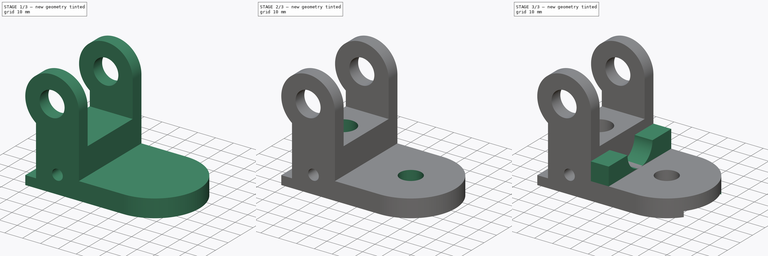
[diagram: build sequence overview — one tinted view per stage of 3, left to right]
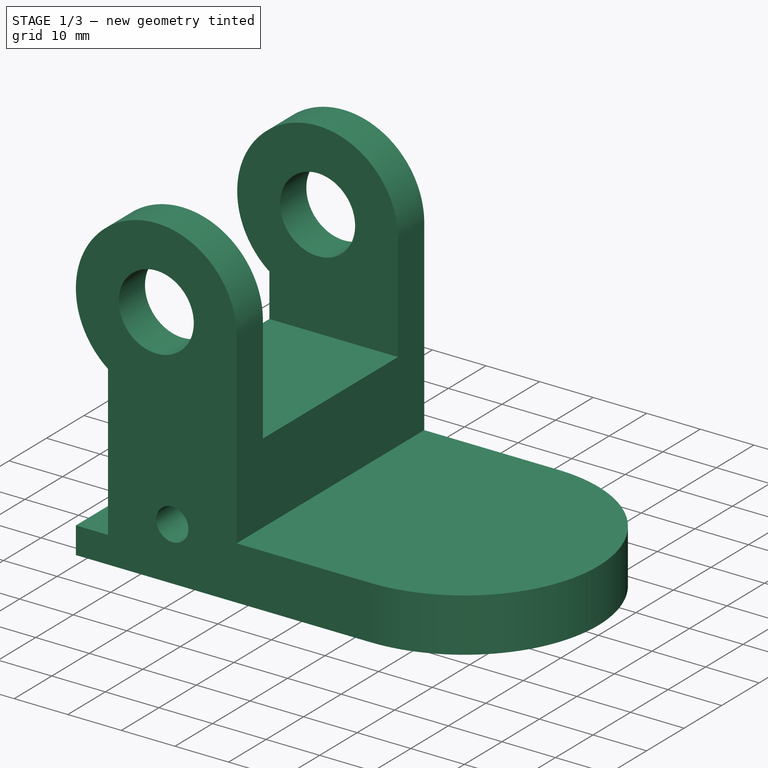
[diagram: stage 1 of 3 — iso view after this stage's code; geometry added in this stage tinted green]
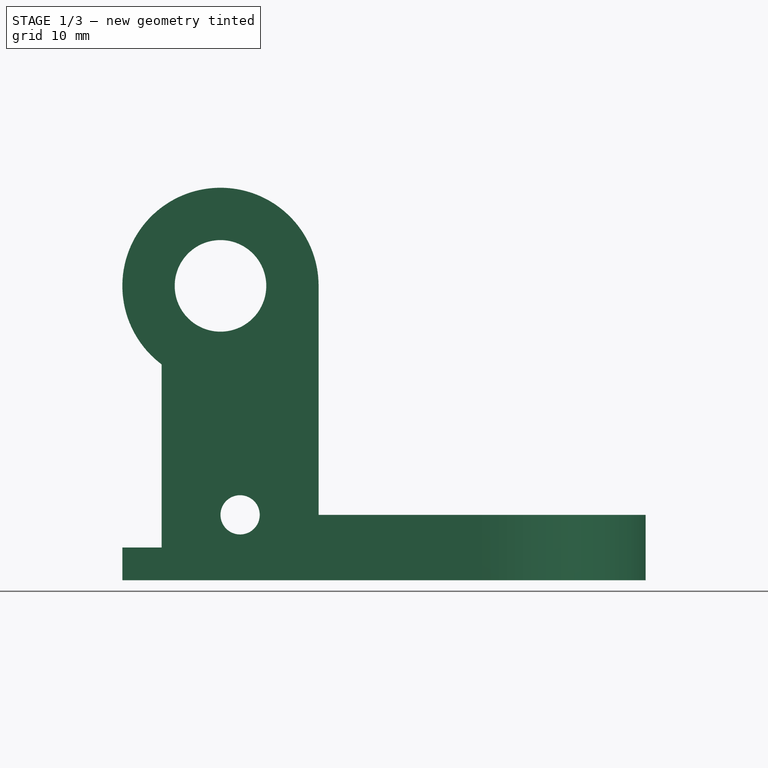
[diagram: stage 1 of 3 — front view after this stage's code; geometry added in this stage tinted green]
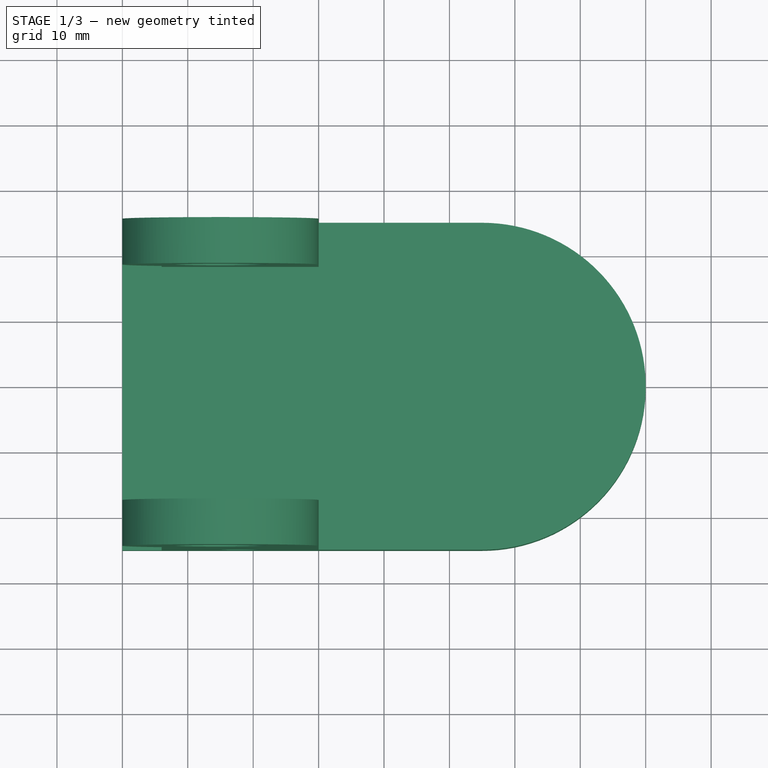
[diagram: stage 1 of 3 — top view after this stage's code; geometry added in this stage tinted green]
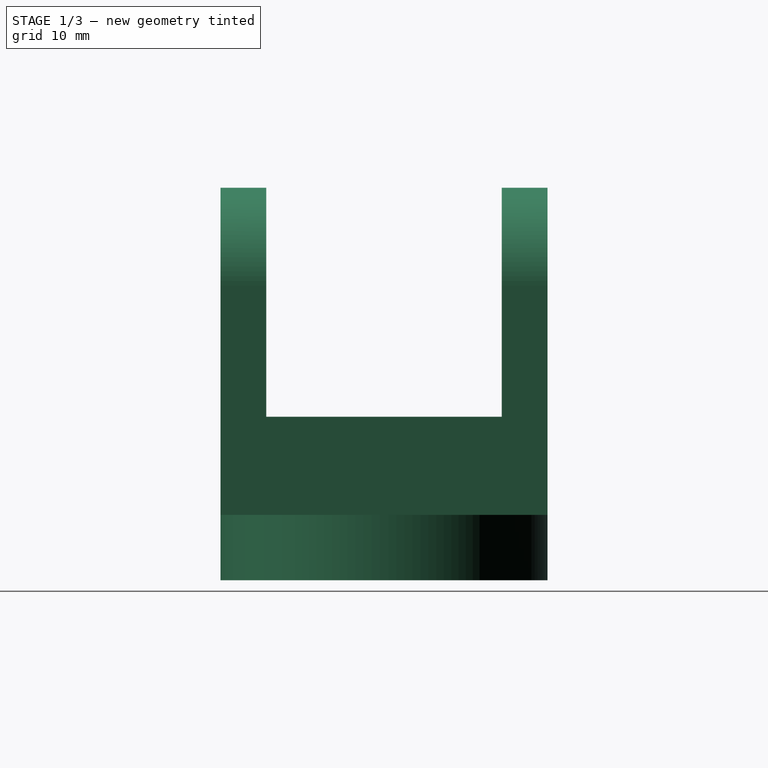
[diagram: stage 1 of 3 — right view after this stage's code; geometry added in this stage tinted green]
FCSTD DOCUMENT  (FreeCAD 0.15R4671 (Git))
Label: breaking
License: All rights reserved
LicenseURL: http://en.wikipedia.org/wiki/All_rights_reserved
objects: Sketcher::SketchObject×8, PartDesign::Pocket×5, PartDesign::Pad×3
note: 24 computed .brp shape members not serialized (recipe doc carries the construction recipe); baked Part::Feature solids carry a one-line shape summary decoded from their .brp

FEATURE [Sketcher::SketchObject] Sketch
  Placement = pos=(0,0,0) rot=(-1,0,0;4.71239rad)
  sketch-geometry (10):
    g0: LineSegment StartX=0 StartY=0 StartZ=0 EndX=0 EndY=5 EndZ=0
    g1: LineSegment StartX=0 StartY=5 StartZ=0 EndX=6 EndY=5 EndZ=0
    g2: LineSegment StartX=6 StartY=5 StartZ=0 EndX=6 EndY=33 EndZ=0
    g3: LineSegment StartX=30 StartY=45.0126 StartZ=0 EndX=30 EndY=10 EndZ=0
    g4: LineSegment StartX=30 StartY=10 StartZ=0 EndX=55 EndY=10 EndZ=0
    g5: LineSegment StartX=55 StartY=10 StartZ=0 EndX=55 EndY=0 EndZ=0
    g6: LineSegment StartX=0 StartY=0 StartZ=0 EndX=55 EndY=0 EndZ=0
    g7: ArcOfCircle CenterX=15 CenterY=45 CenterZ=0 NormalX=0 NormalY=0 NormalZ=1 Radius=15 StartAngle=0.000843274 EndAngle=4.06889
    g8: Circle CenterX=15 CenterY=45 CenterZ=0 NormalX=0 NormalY=0 NormalZ=1 Radius=7
    g9: Circle CenterX=18 CenterY=10 CenterZ=0 NormalX=0 NormalY=0 NormalZ=1 Radius=3
  constraints (23):
    c: Coincident(g-1,g0)
    c: Coincident(g0,g1)
    c: Coincident(g1,g2)
    c: Coincident(g3,g4)
    c: Coincident(g4,g5)
    c: Coincident(g-1,g6)
    c: Coincident(g6,g5)
    c: Coincident(g7,g2)
    c: Coincident(g7,g3)
    c: Coincident(g8,g7)
    c: Radius(g7) = 15
    c: Vertical(g3)
    c: Vertical(g2)
    c: DistanceY(g0) = 5
    c: DistanceY(g5) = -10
    c: DistanceX(g6) = 55
    c: DistanceX(g1,g3) = 24
    c: DistanceX(g4) = 25
    c: Vertical(g5)
    c: DistanceX(g9,g3) = 12
    c: DistanceY(g-1,g9) = 10
    c: Radius(g9) = 3
    c: DistanceY(g-1,g7) = 45
FEATURE [PartDesign::Pad] Pad
  Length = 50
  Length2 = 100
  Midplane = true
  Placement = pos=(0,0,0) rot=(-1,0,0;4.71239rad)
  Sketch = -> Sketch
  Type = 0
FEATURE [Sketcher::SketchObject] Sketch001
  Placement = pos=(0,0,10) rot=(0,0,1;3.14159rad)
  Support = -> Pad [Face2]
  sketch-geometry (1):
    g0: Circle CenterX=-55 CenterY=0 CenterZ=0 NormalX=0 NormalY=0 NormalZ=1 Radius=25
  constraints (3):
    c: PointOnObject(g0,g-1)
    c: DistanceX(g-1,g0) = -55
    c: Radius(g0) = 25
FEATURE [PartDesign::Pad] Pad001
  Length = 50
  Length2 = 100
  Placement = pos=(0,0,0) rot=(-1,0,0;4.71239rad)
  Reversed = true
  Sketch = -> Sketch001
  Type = 2
FEATURE [Sketcher::SketchObject] Sketch002
  Placement = pos=(30,0,0) rot=(0.707107,0,0.707107;3.14159rad)
  Support = -> Pad001 [Face2]
  sketch-geometry (4):
    g0: LineSegment StartX=25 StartY=18 StartZ=0 EndX=60 EndY=18 EndZ=0
    g1: LineSegment StartX=60 StartY=18 StartZ=0 EndX=60 EndY=-18 EndZ=0
    g2: LineSegment StartX=60 StartY=-18 StartZ=0 EndX=25 EndY=-18 EndZ=0
    g3: LineSegment StartX=25 StartY=-18 StartZ=0 EndX=25 EndY=18 EndZ=0
  constraints (12):
    c: Coincident(g0,g1)
    c: Coincident(g1,g2)
    c: Coincident(g2,g3)
    c: Coincident(g3,g0)
    c: Horizontal(g0)
    c: Horizontal(g2)
    c: Vertical(g1)
    c: Vertical(g3)
    c: Symmetric(g0,g1,g-1)
    c: DistanceX(g-1,g0) = 25
    c: DistanceX(g1,g2) = -35
    c: DistanceY(g0,g1) = -36
FEATURE [PartDesign::Pocket] Pocket
  Length = 5
  Placement = pos=(0,0,0) rot=(-1,0,0;4.71239rad)
  Sketch = -> Sketch002
  Type = 1
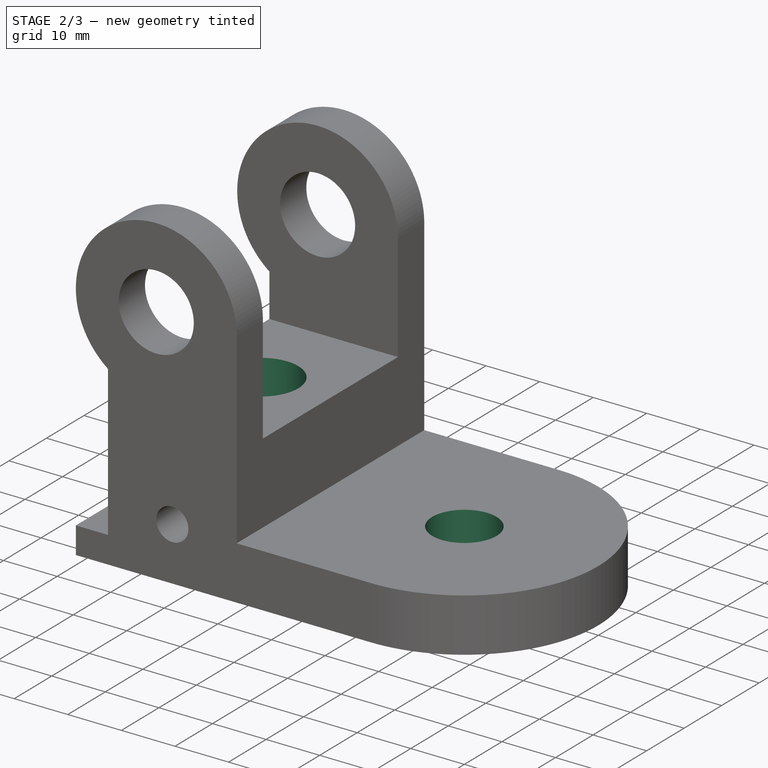
[diagram: stage 2 of 3 — iso view after this stage's code; geometry added in this stage tinted green]
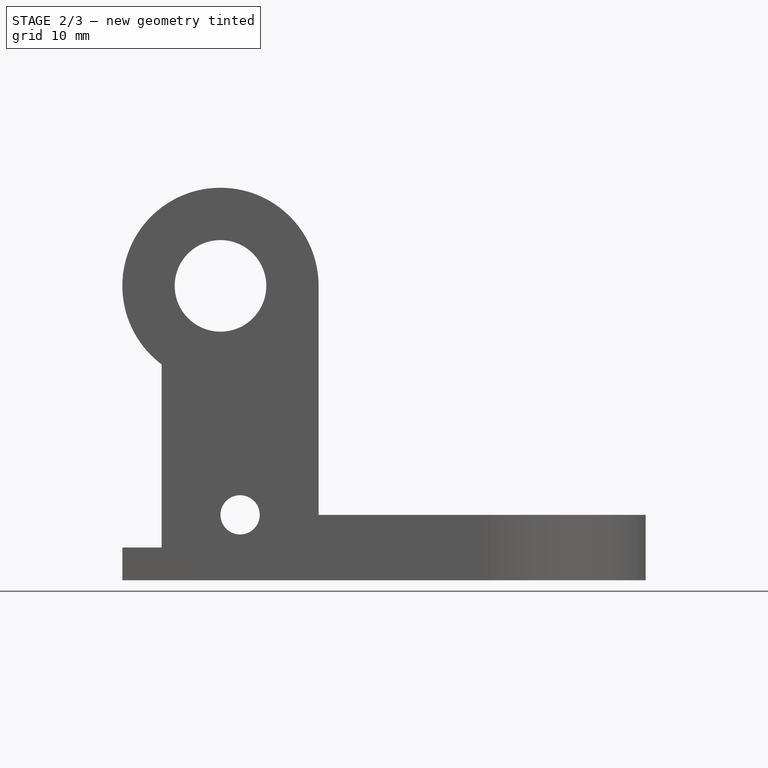
[diagram: stage 2 of 3 — front view after this stage's code; geometry added in this stage tinted green]
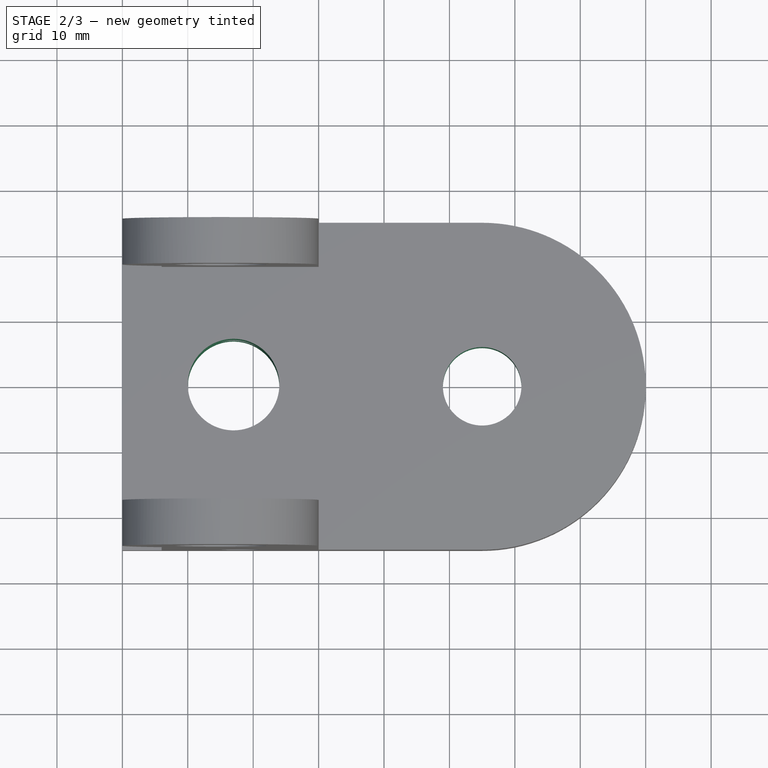
[diagram: stage 2 of 3 — top view after this stage's code; geometry added in this stage tinted green]
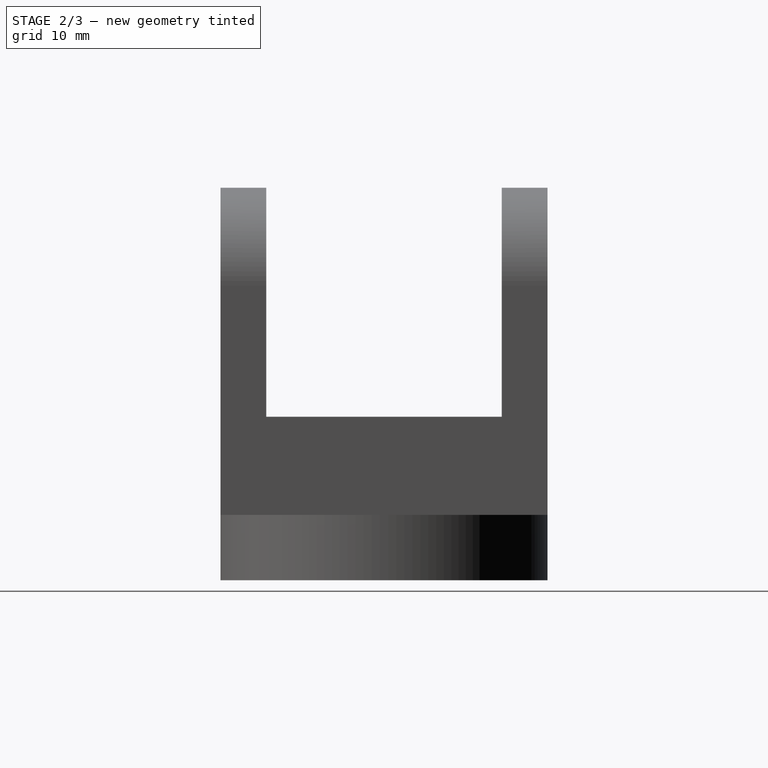
[diagram: stage 2 of 3 — right view after this stage's code; geometry added in this stage tinted green]
FEATURE [Sketcher::SketchObject] Sketch003
  Placement = pos=(0,0,25) rot=(0,0,1;3.14159rad)
  Support = -> Pocket [Face13]
  sketch-geometry (1):
    g0: Circle CenterX=-17 CenterY=0 CenterZ=0 NormalX=0 NormalY=0 NormalZ=1 Radius=7
  constraints (3):
    c: PointOnObject(g0,g-1)
    c: Radius(g0) = 7
    c: DistanceX(g-1,g0) = -17
FEATURE [PartDesign::Pocket] Pocket001
  Length = 5
  Placement = pos=(0,0,0) rot=(-1,0,0;4.71239rad)
  Sketch = -> Sketch003
  Type = 1
FEATURE [Sketcher::SketchObject] Sketch004
  Placement = pos=(0,0,10) rot=(0,0,1;3.14159rad)
  Support = -> Pocket001 [Face18]
  sketch-geometry (1):
    g0: Circle CenterX=-55 CenterY=0 CenterZ=0 NormalX=0 NormalY=0 NormalZ=1 Radius=6
  constraints (3):
    c: PointOnObject(g0,g-1)
    c: DistanceX(g-1,g0) = -55
    c: Radius(g0) = 6
FEATURE [PartDesign::Pocket] Pocket002
  Length = 5
  Placement = pos=(0,0,0) rot=(-1,0,0;4.71239rad)
  Sketch = -> Sketch004
  Type = 1
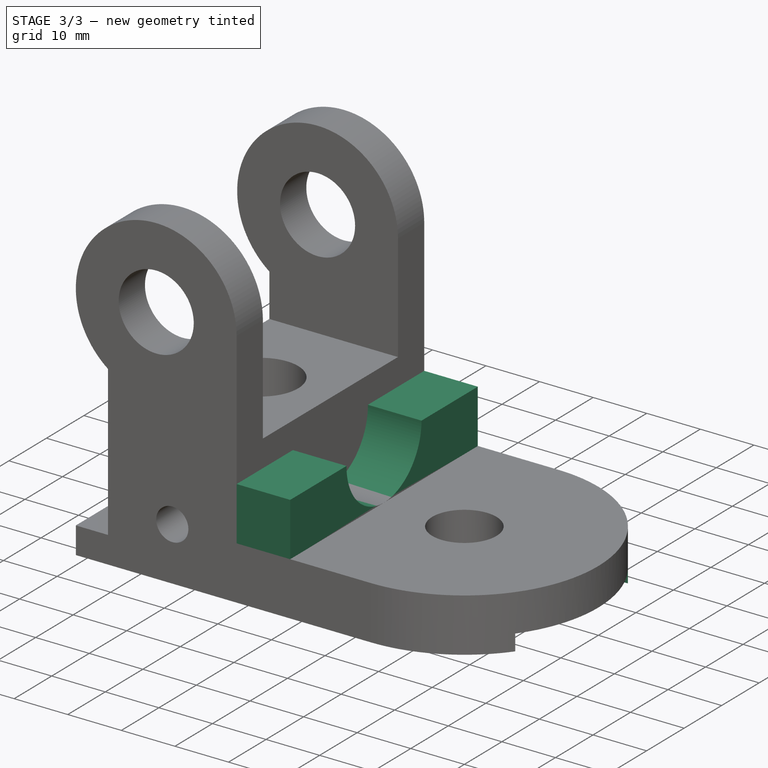
[diagram: stage 3 of 3 — iso view after this stage's code; geometry added in this stage tinted green]
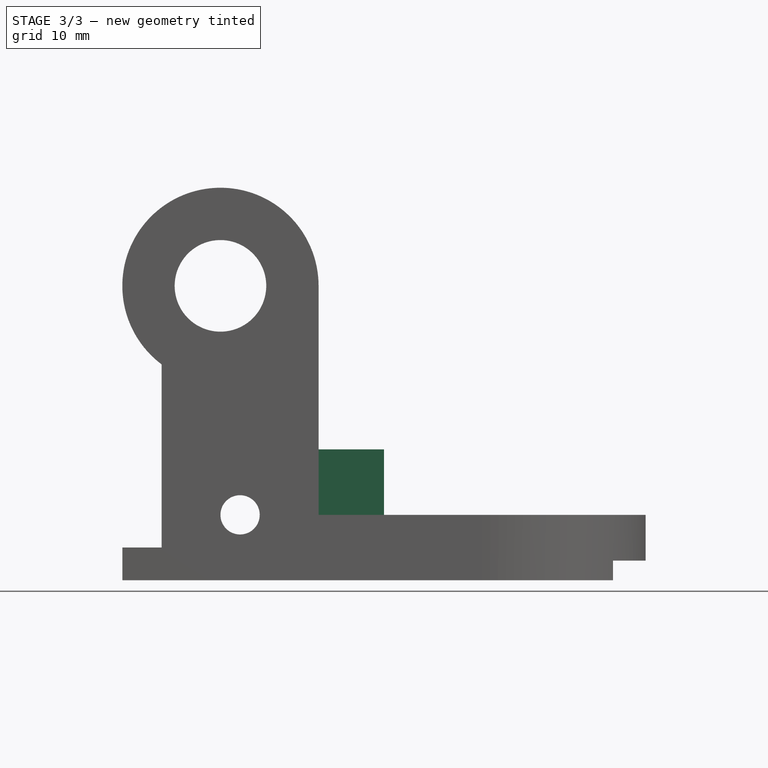
[diagram: stage 3 of 3 — front view after this stage's code; geometry added in this stage tinted green]
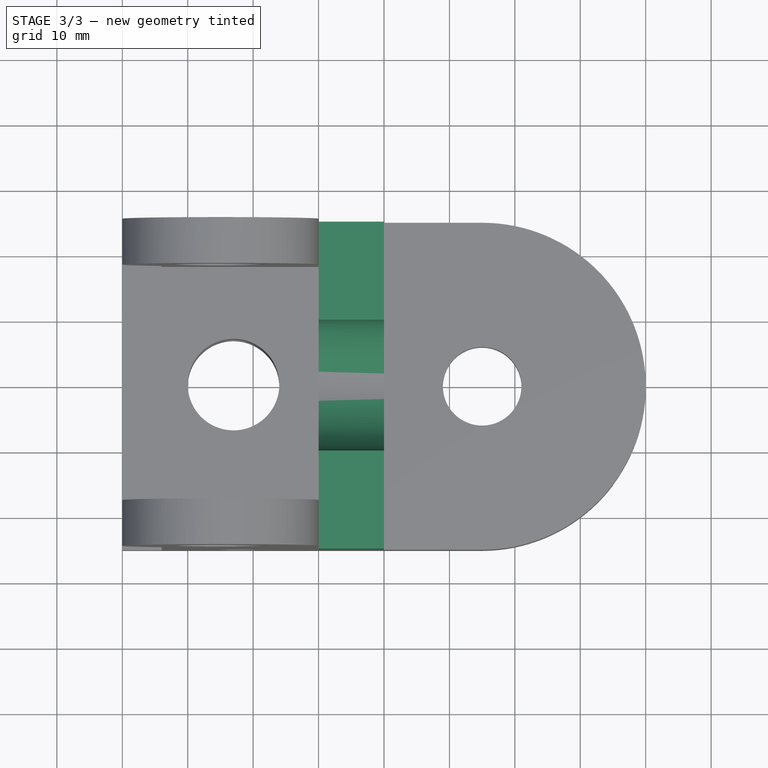
[diagram: stage 3 of 3 — top view after this stage's code; geometry added in this stage tinted green]
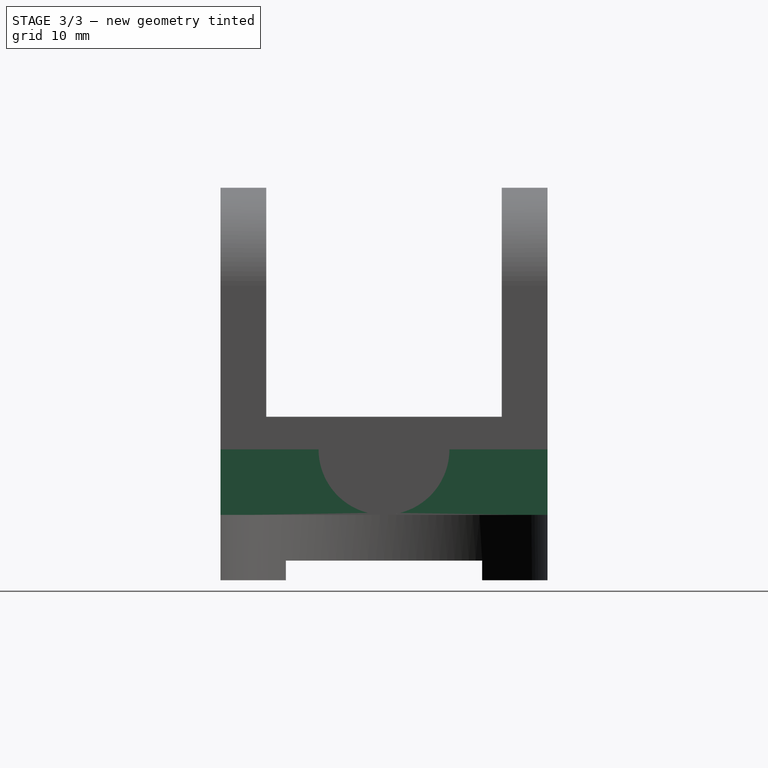
[diagram: stage 3 of 3 — right view after this stage's code; geometry added in this stage tinted green]
FEATURE [Sketcher::SketchObject] Sketch005
  ExternalGeometry = -> [Pocket002]
  Placement = pos=(30,0,0) rot=(0.707107,0,0.707107;3.14159rad)
  Support = -> Pocket002 [Face5]
  sketch-geometry (4):
    g0: LineSegment StartX=10 StartY=25 StartZ=0 EndX=20 EndY=25 EndZ=0
    g1: LineSegment StartX=20 StartY=25 StartZ=0 EndX=20 EndY=-25 EndZ=0
    g2: LineSegment StartX=20 StartY=-25 StartZ=0 EndX=10 EndY=-25 EndZ=0
    g3: LineSegment StartX=10 StartY=-25 StartZ=0 EndX=10 EndY=25 EndZ=0
  constraints (11):
    c: Coincident(g0,g1)
    c: Coincident(g1,g2)
    c: Coincident(g2,g3)
    c: Coincident(g3,g0)
    c: Horizontal(g0)
    c: Horizontal(g2)
    c: Vertical(g1)
    c: Vertical(g3)
    c: Coincident(g-3,g0)
    c: Coincident(g-4,g2)
    c: DistanceX(g0) = 10
FEATURE [PartDesign::Pad] Pad002
  Length = 10
  Length2 = 100
  Placement = pos=(0,0,0) rot=(-1,0,0;4.71239rad)
  Sketch = -> Sketch005
  Type = 0
FEATURE [Sketcher::SketchObject] Sketch006
  Placement = pos=(40,0,0) rot=(0.707107,0,0.707107;3.14159rad)
  Support = -> Pad002 [Face19]
  sketch-geometry (1):
    g0: Circle CenterX=20 CenterY=0 CenterZ=0 NormalX=0 NormalY=0 NormalZ=1 Radius=10
  constraints (3):
    c: PointOnObject(g0,g-1)
    c: DistanceX(g-1,g0) = 20
    c: Radius(g0) = 10
FEATURE [PartDesign::Pocket] Pocket003
  Length = 10
  Placement = pos=(0,0,0) rot=(-1,0,0;4.71239rad)
  Sketch = -> Sketch006
  Type = 0
FEATURE [Sketcher::SketchObject] Sketch007
  Placement = pos=(0,0,0) rot=(0.707107,0,-0.707107;3.14159rad)
  Support = -> Pocket003 [Face9]
  sketch-geometry (4):
    g0: LineSegment StartX=0 StartY=15 StartZ=0 EndX=-3 EndY=15 EndZ=0
    g1: LineSegment StartX=-3 StartY=15 StartZ=0 EndX=-3 EndY=-15 EndZ=0
    g2: LineSegment StartX=-3 StartY=-15 StartZ=0 EndX=0 EndY=-15 EndZ=0
    g3: LineSegment StartX=0 StartY=-15 StartZ=0 EndX=0 EndY=15 EndZ=0
  constraints (12):
    c: Coincident(g0,g1)
    c: Coincident(g1,g2)
    c: Coincident(g2,g3)
    c: Coincident(g3,g0)
    c: Horizontal(g0)
    c: Horizontal(g2)
    c: Vertical(g1)
    c: Vertical(g3)
    c: PointOnObject(g0,g-2)
    c: Symmetric(g0,g2,g-1)
    c: DistanceY(g1) = -30
    c: DistanceX(g0) = -3
FEATURE [PartDesign::Pocket] Pocket004
  Length = 5
  Placement = pos=(0,0,0) rot=(-1,0,0;4.71239rad)
  Sketch = -> Sketch007
  Type = 1
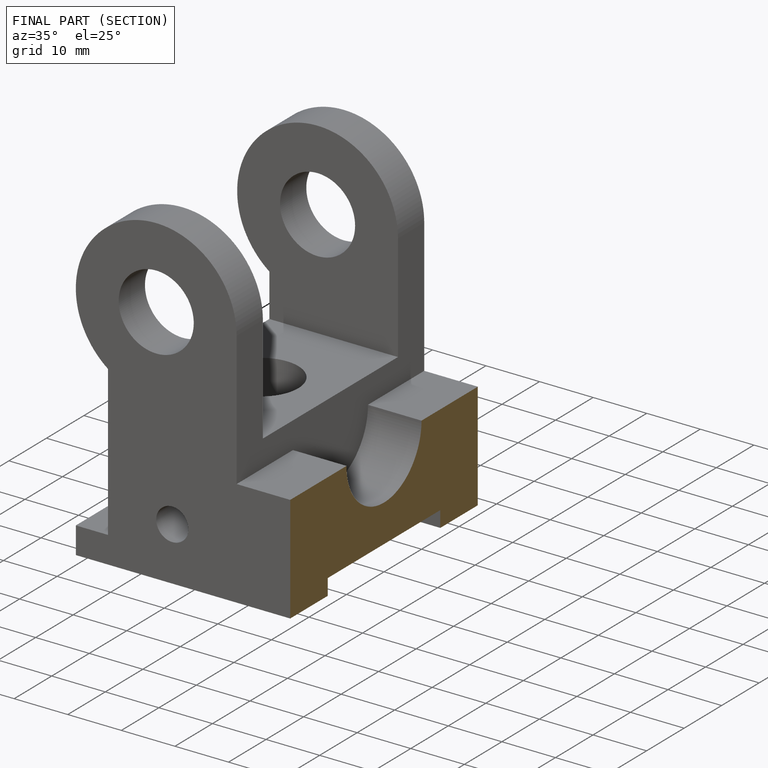
[diagram: finished part — half-section view (interior)]
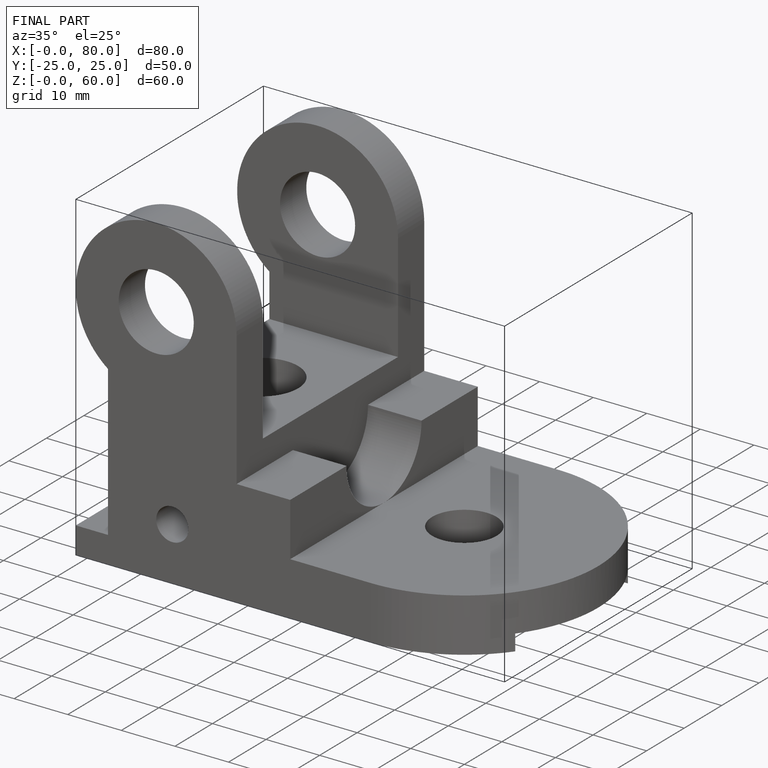
[diagram: finished part — iso view with bounding-box wireframe]
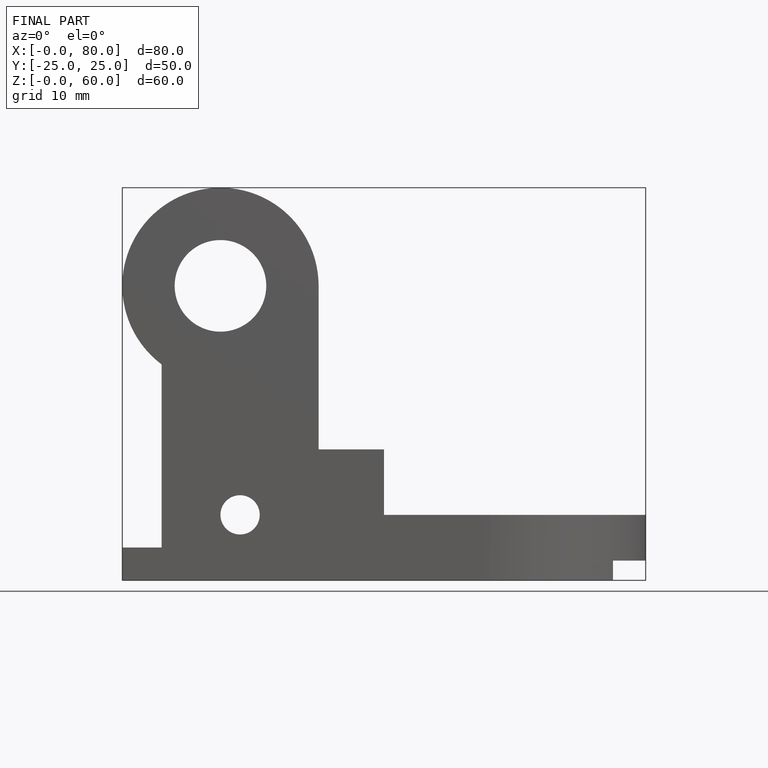
[diagram: finished part — front view with bounding-box wireframe]
